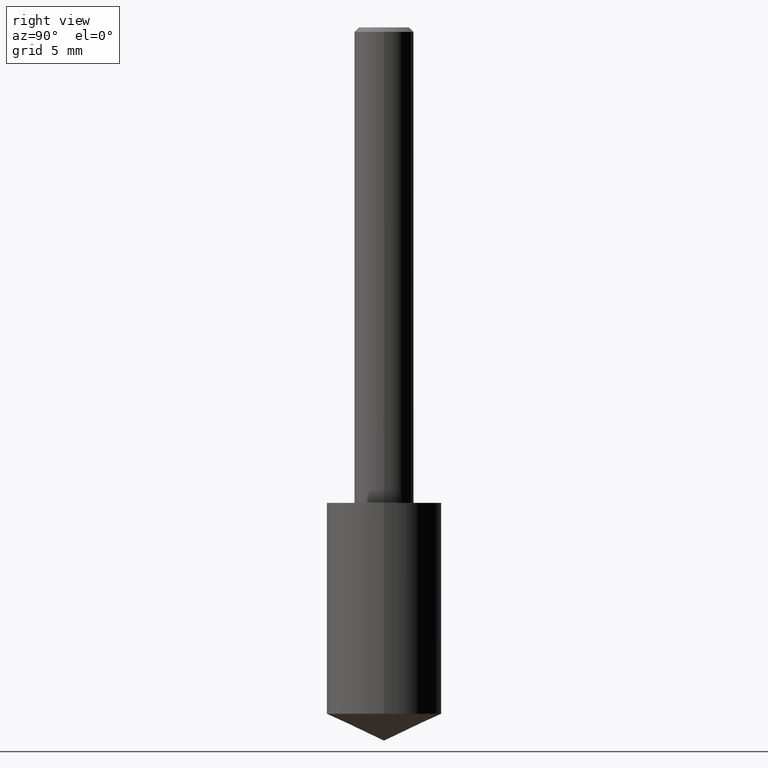
[diagram: clean part render]
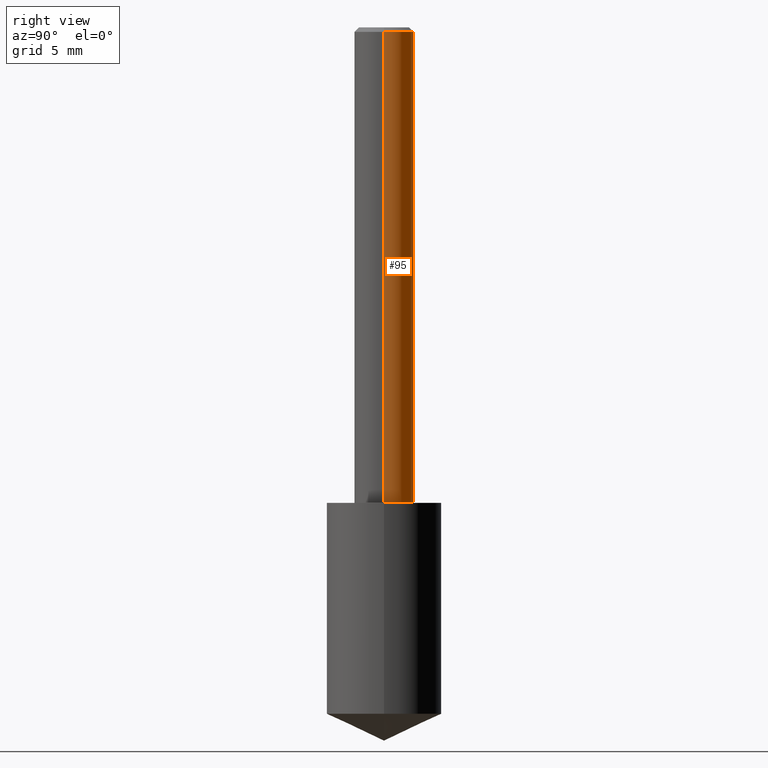
[diagram: same view with one face highlighted and labeled with its STEP entity id]
A machine part, right view. The second image highlights one B-rep face of the part: STEP entity #95.
In plain terms, the highlighted cylindrical surface (edge-blend (fillet) strip) has radius 1.5875 mm, axis along (-0, 0, 1).
Its self-contained STEP definition (entity closure, byte-faithful):
#4 = CARTESIAN_POINT ( 'NONE',  ( 0.06250000000000006939, -4.364351673553921624E-16, 3.047610484872463374E-30 ) ) ;
#13 = AXIS2_PLACEMENT_3D ( 'NONE', #167, #173, #220 ) ;
#24 = CARTESIAN_POINT ( 'NONE',  ( 0.000000000000000000, 0.000000000000000000, 0.000000000000000000 ) ) ;
#28 = ORIENTED_EDGE ( 'NONE', *, *, #324, .T. ) ;
#54 = VERTEX_POINT ( 'NONE', #148 ) ;
#57 = DIRECTION ( 'NONE',  ( 1.000000000000000000, -6.982962677686266711E-15, 0.000000000000000000 ) ) ;
#70 = FACE_OUTER_BOUND ( 'NONE', #248, .T. ) ;
#75 = LINE ( 'NONE', #4, #278 ) ;
#76 = DIRECTION ( 'NONE',  ( -2.445468806185136877E-29, 3.491481338843145188E-15, 1.000000000000000000 ) ) ;
#89 = ORIENTED_EDGE ( 'NONE', *, *, #258, .F. ) ;
#95 = ADVANCED_FACE ( 'NONE', ( #70 ), #179, .T. ) ;
#102 = VECTOR ( 'NONE', #76, 39.37007874015748143 ) ;
#132 = DIRECTION ( 'NONE',  ( -2.445468806185136597E-29, 3.491481338843145583E-15, 1.000000000000000000 ) ) ;
#148 = CARTESIAN_POINT ( 'NONE',  ( 0.06250000000000000000, -4.691678049070464390E-16, -0.009375000000000067307 ) ) ;
#152 = EDGE_CURVE ( 'NONE', #322, #54, #75, .T. ) ;
#154 = DIRECTION ( 'NONE',  ( -2.445468806185136597E-29, 3.491481338843145583E-15, 1.000000000000000000 ) ) ;
#165 = VERTEX_POINT ( 'NONE', #237 ) ;
#167 = CARTESIAN_POINT ( 'NONE',  ( 2.445468806185137438E-29, -3.491481338843146371E-15, -1.000000000000000222 ) ) ;
#173 = DIRECTION ( 'NONE',  ( -2.445468806185136597E-29, 3.491481338843145583E-15, 1.000000000000000000 ) ) ;
#177 = AXIS2_PLACEMENT_3D ( 'NONE', #266, #132, #57 ) ;
#179 = CYLINDRICAL_SURFACE ( 'NONE', #281, 0.06250000000000006939 ) ;
#191 = CARTESIAN_POINT ( 'NONE',  ( -0.06250000000000000000, -1.318017778347336672E-15, -0.009375000000000067307 ) ) ;
#209 = CARTESIAN_POINT ( 'NONE',  ( -0.06250000000000006939, 4.440892098500631092E-16, -3.074334431409319267E-30 ) ) ;
#220 = DIRECTION ( 'NONE',  ( 1.000000000000000000, -6.982962677686264344E-15, 0.000000000000000000 ) ) ;
#224 = DIRECTION ( 'NONE',  ( 1.000000000000000000, -6.982962677686266711E-15, 4.876176775795935793E-29 ) ) ;
#232 = EDGE_CURVE ( 'NONE', #165, #306, #300, .T. ) ;
#237 = CARTESIAN_POINT ( 'NONE',  ( -0.06250000000000012490, -1.318017778347335489E-15, -1.000000000000000222 ) ) ;
#241 = ORIENTED_EDGE ( 'NONE', *, *, #152, .F. ) ;
#245 = CIRCLE ( 'NONE', #177, 0.06250000000000000000 ) ;
#248 = EDGE_LOOP ( 'NONE', ( #28, #316, #89, #241 ) ) ;
#258 = EDGE_CURVE ( 'NONE', #54, #306, #245, .T. ) ;
#266 = CARTESIAN_POINT ( 'NONE',  ( 2.292627005798582375E-31, -3.273263755165472650E-17, -0.009375000000000067307 ) ) ;
#278 = VECTOR ( 'NONE', #329, 39.37007874015748143 ) ;
#281 = AXIS2_PLACEMENT_3D ( 'NONE', #24, #154, #224 ) ;
#299 = CARTESIAN_POINT ( 'NONE',  ( 0.06250000000000012490, -3.927916506198539224E-15, -1.000000000000000222 ) ) ;
#300 = LINE ( 'NONE', #209, #102 ) ;
#303 = CIRCLE ( 'NONE', #13, 0.06250000000000012490 ) ;
#306 = VERTEX_POINT ( 'NONE', #191 ) ;
#316 = ORIENTED_EDGE ( 'NONE', *, *, #232, .T. ) ;
#322 = VERTEX_POINT ( 'NONE', #299 ) ;
#324 = EDGE_CURVE ( 'NONE', #322, #165, #303, .T. ) ;
#329 = DIRECTION ( 'NONE',  ( -2.445468806185136877E-29, 3.491481338843145188E-15, 1.000000000000000000 ) ) ;